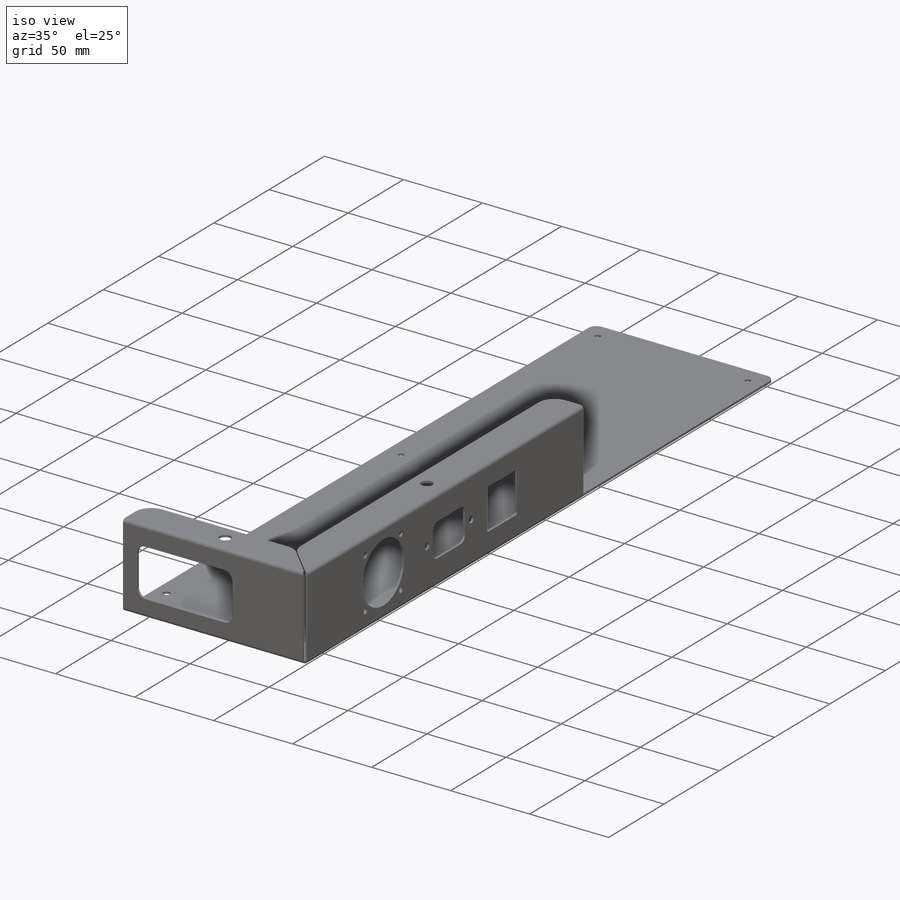
[diagram: iso view]
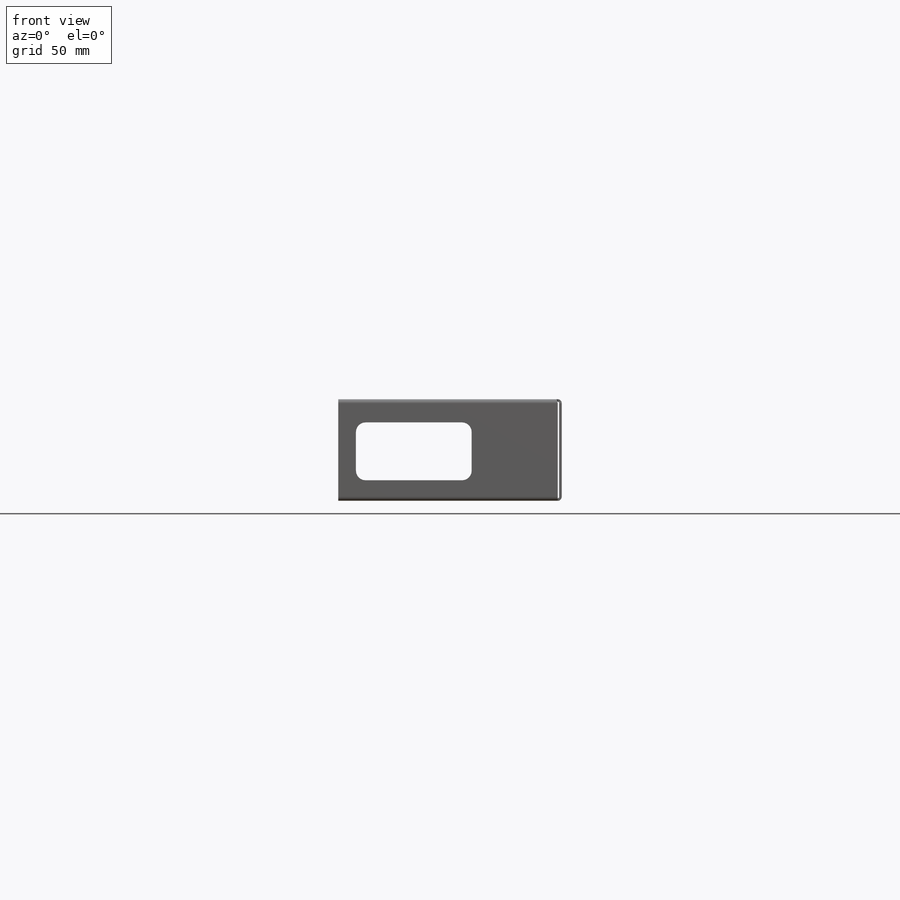
[diagram: front view]
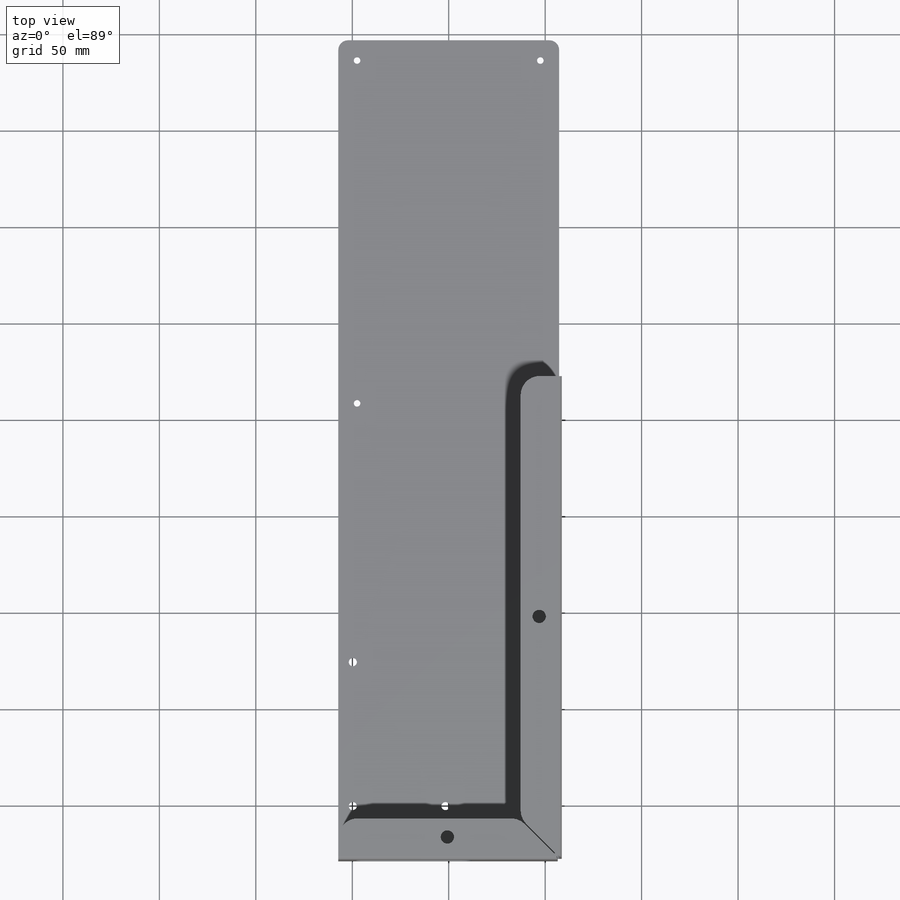
[diagram: top view]
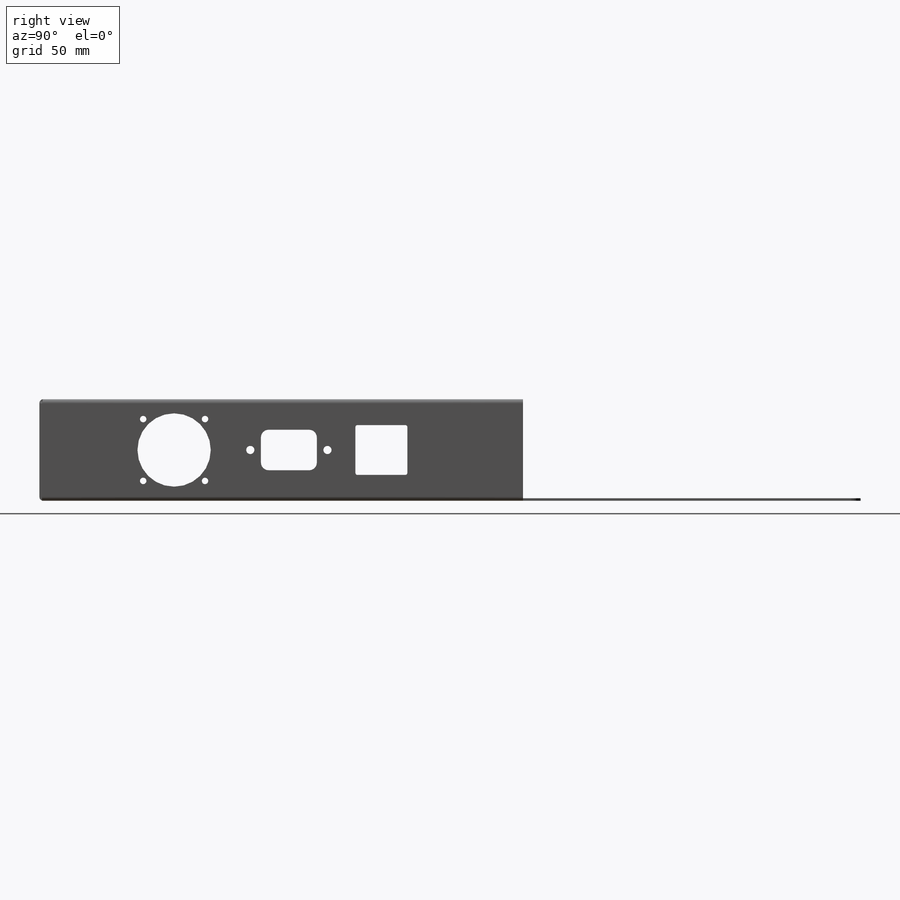
[diagram: right view]
SOLIDWORKS PART (.sldprt)
format: sldprt  version: not decoded by parser v0  size: 1,174,016 bytes
history: native  units: mm
features: sketch x11, sheet_metal_op x2, fillet x2, hole x2, material x1, cut_extrude x1 + 4 further entries (+11 scaffold rows collapsed; 1 parser-record rows omitted)
feature tree (35):
  scaffold x11  (default folders/planes/origin — collapsed)
  material  "Material <not specified>"
  sketch  "Sketch2"  dims[D1=20.0mm D2=15.0mm D3=40.0mm]
  sheet_metal_op  "Sheet-Metal1"
  sheet_metal_op  "Base-Flange1"
  fillet  "BaseFillet"  Radius=5mm
  sketch  "Sketch7"  dims[c1.D1=55.0mm c1.D2=20.0mm c2.D1=0.7366mm c2.D4=90.0deg c2.D5=1.0 c2.D8=0.665mm c2.D9=0.665mm c3.D1=0.7366mm c3.D2=500.0mm c3.D3=0.0mm c3.D6=10.0mm c3.D7=51.33mm]
  sketch  "Sketch29"  dims[c1.D1=0.7366mm c1.D4=90.0deg c1.D5=3.0 c1.D8=0.665mm c1.D9=0.665mm c2.D1=0.7366mm c2.D2=500.0mm c2.D3=0.0mm c2.D6=10.0mm c2.D7=51.33mm]
  sketch  "Sketch18"  dims[c1.D3=10.0mm c1.D4=10.0mm c1.D5=5.0mm c1.D6=5.0mm c1.D1=20.0mm c1.D2=20.0mm c2.D2=45.0deg c3.D2=~28.284271mm c4.D2=45.0deg c4.D5=2.0mm c4.D1=0.7366mm c4.D4=90.0deg c5.D5=2.0 c5.D8=0.665mm c5.D9=0.665mm c5.D1=0.7366mm c5.D2=500.0mm c5.D3=0.0mm c5.D6=10.0mm c5.D7=21.33mm]
  sketch  "Sketch35"  dims[c1.D3=10.0mm c1.D1=13.0666mm c2.D1=45.0deg c2.D2=20.0mm c3.D1=0.7366mm c3.D4=90.0deg c3.D5=4.0 c3.D8=0.665mm c3.D9=0.665mm c4.D1=0.7366mm c4.D2=500.0mm c4.D3=0.0mm c4.D6=10.0mm c4.D7=21.33mm]
  sketch  "Sketch39"  dims[D1=4.22mm]
  cut_extrude  "Side Holes"  [1 undecoded]
  sketch  "Sketch40"  dims[c1.D4=2.5mm c1.D2=52.5mm c1.D3=30.0mm c1.D5=2.5mm c1.D6=2.5mm c2.D2=50.0mm c2.D1=0.0mm]
  hole  "End Hole"  [1 undecoded]
  fillet  "Fillet1"  Radius=5.5mm
  sketch  "Sketch26"  dims[D1=6.9mm D2=32.5mm]
  sketch  "Sketch11"  dims[D1=4.22mm D2=81.0mm]
  hole  "M3 Captive Nut Hole"  [1 undecoded]
  "Flat-Pattern1"
  sketch  "Bend-Lines1"
  sketch  "Bounding-Box1"
  parser-record x1  (decoder bookkeeping rows leaked as tree rows — omitted from the tree; the rows remain in map.json)
  "Flatten-<EdgeBend3>1"
  "Flatten-<EdgeBend4>1"
  "Flatten-<EdgeBend5>1"
decode coverage: 11 of 18 modeling features carry decoded parameters; 4 rows unclassified (native names shown)
note: ~ marks probable driven/reference dimensions
note: 3 parameter values undecoded
summary: no parameter record found for 3 features
note: suppression state not decoded; provenance and decode notes live in map.json
